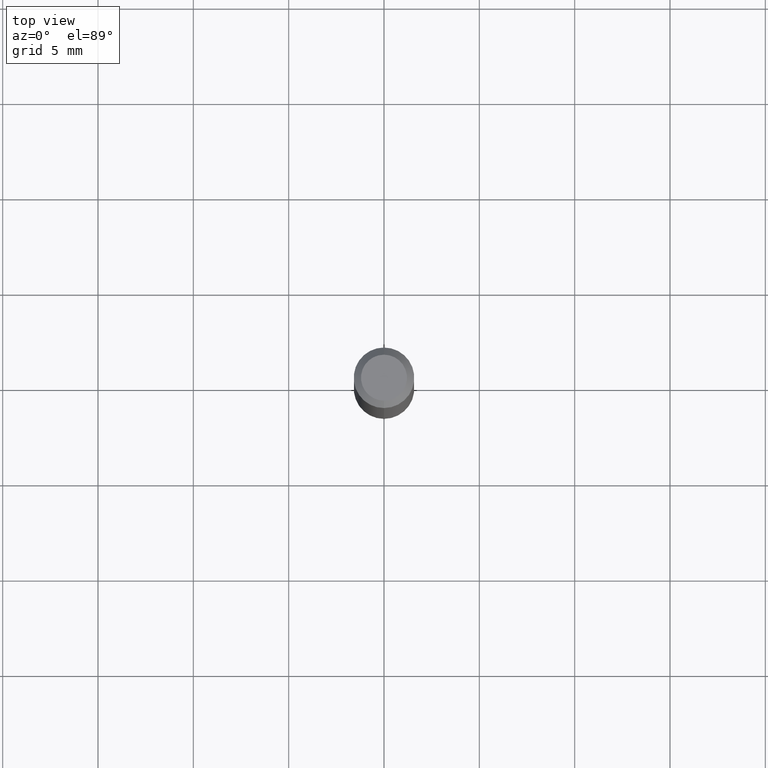
[diagram: clean part render]
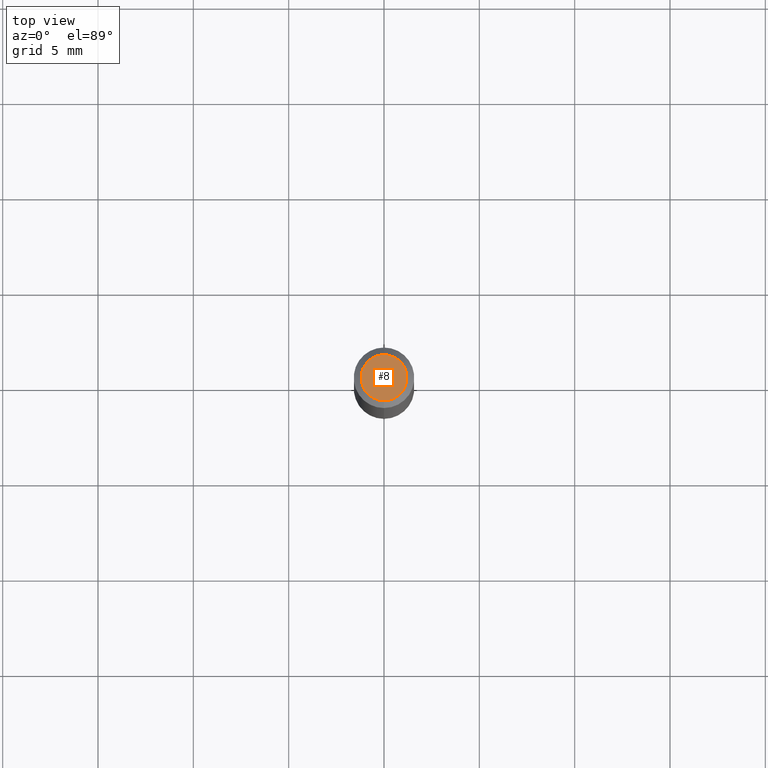
[diagram: same view with one face highlighted and labeled with its STEP entity id]
A machine part, top view. The second image highlights one B-rep face of the part: STEP entity #8.
In plain terms, the highlighted planar face has unit normal (0, -0, -1).
Its self-contained STEP definition (entity closure, byte-faithful):
#8 = ADVANCED_FACE ( 'NONE', ( #371 ), #427, .F. ) ;
#57 = VERTEX_POINT ( 'NONE', #308 ) ;
#60 = ORIENTED_EDGE ( 'NONE', *, *, #272, .T. ) ;
#61 = DIRECTION ( 'NONE',  ( -6.982962677686265133E-15, -1.000000000000000000, 3.491311816450835107E-15 ) ) ;
#63 = CARTESIAN_POINT ( 'NONE',  ( -6.680775512965913768E-45, 9.537452049650120566E-31, 2.731767470527915752E-16 ) ) ;
#67 = CARTESIAN_POINT ( 'NONE',  ( 3.316907271900976589E-16, 0.04750000000000000749, -2.924893775501889919E-17 ) ) ;
#70 = CARTESIAN_POINT ( 'NONE',  ( -6.680775512965913768E-45, 9.537452049650120566E-31, 2.731767470527915752E-16 ) ) ;
#83 = CIRCLE ( 'NONE', #461, 0.04750000000000000749 ) ;
#144 = DIRECTION ( 'NONE',  ( -2.445587183038990238E-29, 3.491311816450835107E-15, 1.000000000000000000 ) ) ;
#171 = DIRECTION ( 'NONE',  ( -6.982962677686265133E-15, -1.000000000000000000, 3.491311816450835107E-15 ) ) ;
#182 = CARTESIAN_POINT ( 'NONE',  ( -3.773273898774340269E-16, -0.04750000000000000749, 4.390140583342062744E-16 ) ) ;
#209 = DIRECTION ( 'NONE',  ( 2.445587183038990238E-29, -3.491311816450834712E-15, -1.000000000000000000 ) ) ;
#263 = VERTEX_POINT ( 'NONE', #182 ) ;
#272 = EDGE_CURVE ( 'NONE', #263, #57, #83, .T. ) ;
#280 = AXIS2_PLACEMENT_3D ( 'NONE', #67, #209, #367 ) ;
#286 = EDGE_CURVE ( 'NONE', #57, #263, #363, .T. ) ;
#308 = CARTESIAN_POINT ( 'NONE',  ( 3.840629472727447874E-16, 0.04750000000000000749, 1.073394357713768884E-16 ) ) ;
#356 = ORIENTED_EDGE ( 'NONE', *, *, #286, .T. ) ;
#363 = CIRCLE ( 'NONE', #402, 0.04750000000000000749 ) ;
#367 = DIRECTION ( 'NONE',  ( 6.982962677686265922E-15, 1.000000000000000000, -3.491311816450834712E-15 ) ) ;
#371 = FACE_OUTER_BOUND ( 'NONE', #451, .T. ) ;
#402 = AXIS2_PLACEMENT_3D ( 'NONE', #63, #144, #171 ) ;
#427 = PLANE ( 'NONE',  #280 ) ;
#451 = EDGE_LOOP ( 'NONE', ( #356, #60 ) ) ;
#461 = AXIS2_PLACEMENT_3D ( 'NONE', #70, #507, #61 ) ;
#507 = DIRECTION ( 'NONE',  ( -2.445587183038990238E-29, 3.491311816450835107E-15, 1.000000000000000000 ) ) ;